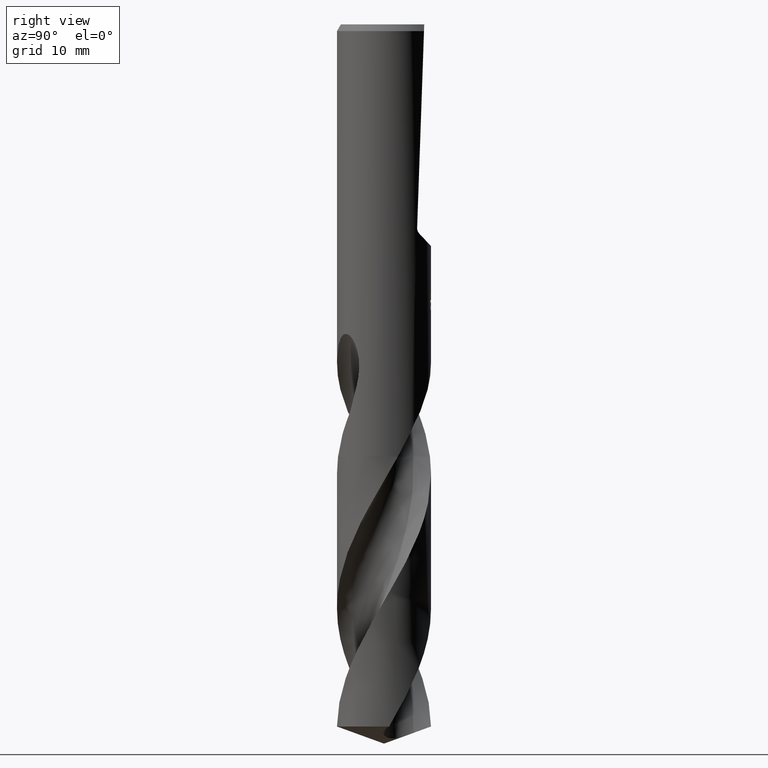
[diagram: clean part render]
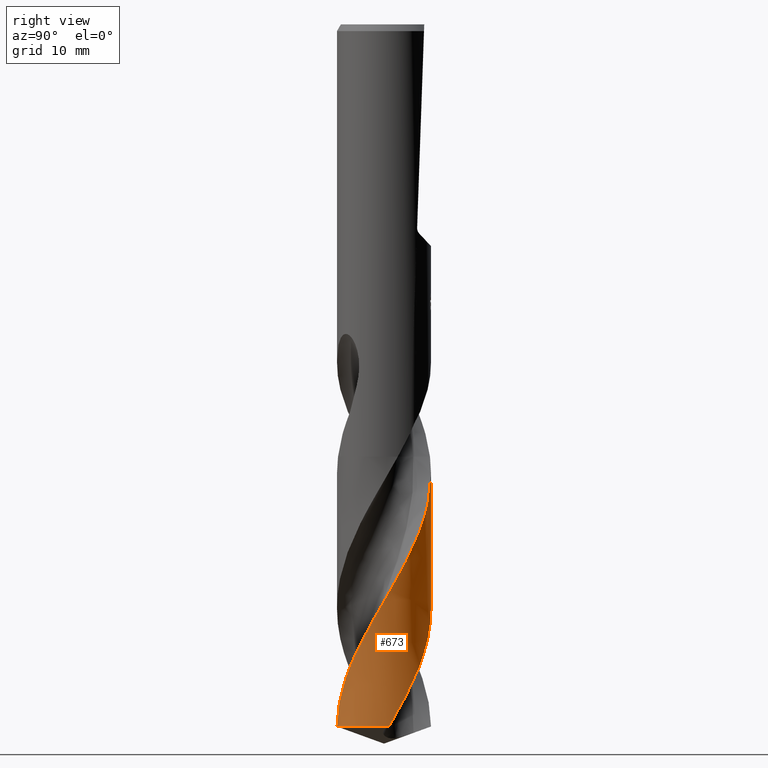
[diagram: same view with one face highlighted and labeled with its STEP entity id]
A machine part, right view. The second image highlights one B-rep face of the part: STEP entity #673.
In plain terms, the highlighted conical surface has half-angle 0 deg.
Its self-contained STEP definition (entity closure, byte-faithful):
#365=VERTEX_POINT('',#886);
#531=EDGE_CURVE('',#607,#365,#1062,.T.);
#605=EDGE_CURVE('',#619,#365,#1145,.T.);
#607=VERTEX_POINT('',#1147);
#609=VERTEX_POINT('',#1149);
#619=VERTEX_POINT('',#1160);
#673=ADVANCED_FACE('',(#1225),#1226,.T.);
#689=EDGE_CURVE('',#607,#609,#1244,.T.);
#729=EDGE_CURVE('',#619,#609,#1286,.T.);
#886=CARTESIAN_POINT('',(0.171648917684239,-6.99789515847857,-104.452208360137));
#1062=CIRCLE('',#4177,7.0);
#1145=B_SPLINE_CURVE_WITH_KNOTS('',3,(#5115,#5116,#5117,#5118,#5119,#5120,#5121,#5122,#5123,#5124,#5125,#5126,#5127,#5128,#5129,#5130,#5131,#5132,#5133,#5134,#5135,#5136,#5137,#5138,#5139,#5140,#5141,#5142,#5143,#5144,#5145,#5146,#5147,#5148,#5149,#5150,#5151,#5152,#5153,#5154,#5155,#5156,#5157,#5158,#5159,#5160,#5161,#5162,#5163,#5164,#5165,#5166,#5167,#5168),.UNSPECIFIED.,.F.,.F.,(4,2,2,2,2,2,2,2,2,2,2,2,2,2,2,2,2,2,2,2,2,2,2,2,2,2,4),(0.0,2.42463853208289,5.11825905022911,6.46930595296713,6.63663382298346,9.32046325382395,10.6685583011662,13.3613726300013,14.0328891449474,16.7220268329545,18.0666143228101,20.7620736525515,20.9296503367868,23.6145475187379,24.9618937636407,27.6537494544557,28.2381702892375,30.5049659548148,32.4952036520931,34.2363155569914,35.7604490176893,38.4274434662067,38.9275706412503,40.8041618091299,42.2120666753582,42.3439555753108,46.4382558351308),.UNSPECIFIED.);
#1147=CARTESIAN_POINT('',(6.95834412485811,0.762526747106399,-104.452208360137));
#1149=CARTESIAN_POINT('',(-1.19753568585419E-014,6.9999561201646,-86.8334854219192));
#1160=CARTESIAN_POINT('',(-2.90876926966706E-012,6.99990641540312,-66.8759260314849));
#1225=FACE_OUTER_BOUND('',#6323,.T.);
#1226=CONICAL_SURFACE('',#6324,6.99995,2.49052303929666E-006);
#1244=B_SPLINE_CURVE_WITH_KNOTS('',3,(#6583,#6584,#6585,#6586,#6587,#6588,#6589,#6590,#6591,#6592,#6593,#6594,#6595,#6596,#6597,#6598,#6599,#6600,#6601,#6602,#6603,#6604,#6605,#6606,#6607,#6608,#6609,#6610,#6611,#6612,#6613,#6614,#6615,#6616,#6617,#6618,#6619,#6620,#6621,#6622,#6623,#6624,#6625,#6626,#6627,#6628,#6629,#6630,#6631,#6632,#6633,#6634,#6635,#6636,#6637,#6638,#6639,#6640),.UNSPECIFIED.,.F.,.F.,(4,2,2,2,2,2,2,2,2,2,2,2,2,2,2,2,2,2,2,2,2,2,2,2,2,2,2,2,4),(0.0,3.39543451186766,5.60586435712491,6.94543109124275,8.28249579723188,10.0692441872911,10.9624324038601,11.853958782141,13.6404138657621,14.5334724137825,15.4248235927908,17.2110025318939,18.1039026545895,18.9950894885276,20.780961848582,23.4763709606844,24.7640418770248,26.10130580234,29.1952198764106,29.2863759270751,31.0537916685812,32.0137325630353,33.8105038613855,35.3858840478238,36.762907054197,38.6016613054026,40.5538676187283,43.4931155662234,46.4199670524006),.UNSPECIFIED.);
#1286=LINE('',#7273,#7274);
#4177=AXIS2_PLACEMENT_3D('',#7712,#7713,#7714);
#5115=CARTESIAN_POINT('',(-1.48231605309676,6.84115043153617,-64.3028157406));
#5116=CARTESIAN_POINT('',(-1.08543241818439,6.92714754141986,-65.0015974509227));
#5117=CARTESIAN_POINT('',(-0.682003755208056,6.97840455710284,-65.700664908244));
#5118=CARTESIAN_POINT('',(0.173781012570545,7.01225067306067,-67.1759475750082));
#5119=CARTESIAN_POINT('',(0.624926672226586,6.98652396856223,-67.9501317657106));
#5120=CARTESIAN_POINT('',(1.2940419208945,6.88297715681841,-69.1159808817254));
#5121=CARTESIAN_POINT('',(1.51573692310627,6.83757790469686,-69.505113896801));
#5122=CARTESIAN_POINT('',(1.76197796857612,6.77458596209132,-69.9427770648114));
#5123=CARTESIAN_POINT('',(1.78907024375654,6.76748184620537,-69.9910060956537));
#5124=CARTESIAN_POINT('',(2.24996377924964,6.6436657922574,-70.8128944952736));
#5125=CARTESIAN_POINT('',(2.67165487779869,6.48560065109283,-71.5855567979758));
#5126=CARTESIAN_POINT('',(3.27805754032637,6.18903665533498,-72.7478241649815));
#5127=CARTESIAN_POINT('',(3.47587110672552,6.08014387273307,-73.135994762318));
#5128=CARTESIAN_POINT('',(4.05197522475307,5.72569831990265,-74.3009636904454));
#5129=CARTESIAN_POINT('',(4.41223900687096,5.45292771607447,-75.0757725576103));
#5130=CARTESIAN_POINT('',(4.82647907246562,5.07116868457852,-76.0456177143773));
#5131=CARTESIAN_POINT('',(4.90730049759594,4.99300058620514,-76.239131077849));
#5132=CARTESIAN_POINT('',(5.30215135656877,4.59226431814843,-77.2080388815017));
#5133=CARTESIAN_POINT('',(5.58649076869326,4.24181181795913,-77.9820345746769));
#5134=CARTESIAN_POINT('',(5.95958154541472,3.67874967938536,-79.1449377634296));
#5135=CARTESIAN_POINT('',(6.07479259040593,3.48520888247137,-79.5322659701586));
#5136=CARTESIAN_POINT('',(6.39229690177596,2.88812735097526,-80.6971779192447));
#5137=CARTESIAN_POINT('',(6.56516861709821,2.47012254512069,-81.4726443882975));
#5138=CARTESIAN_POINT('',(6.70477911466411,2.011455211893,-82.2980597271048));
#5139=CARTESIAN_POINT('',(6.71278856143122,1.98456201138058,-82.3463686719297));
#5140=CARTESIAN_POINT('',(6.84637135283357,1.52597114453977,-83.1688064720322));
#5141=CARTESIAN_POINT('',(6.93023732537459,1.08317149850801,-83.9418958026259));
#5142=CARTESIAN_POINT('',(6.99153512673312,0.410697795647012,-85.1045476106341));
#5143=CARTESIAN_POINT('',(7.00113818912948,0.185170790760578,-85.4926334879896));
#5144=CARTESIAN_POINT('',(6.99723779937759,-0.491075698364233,-86.6574260453632));
#5145=CARTESIAN_POINT('',(6.95111911978041,-0.940539487979244,-87.432156280145));
#5146=CARTESIAN_POINT('',(6.842745625668,-1.47846298222499,-88.3768494685555));
#5147=CARTESIAN_POINT('',(6.82140609649966,-1.57398914046706,-88.545308084329));
#5148=CARTESIAN_POINT('',(6.70756639210208,-2.03767405293099,-89.3675288430942));
#5149=CARTESIAN_POINT('',(6.58721724489462,-2.39837013352996,-90.0206169922325));
#5150=CARTESIAN_POINT('',(6.30739064141976,-3.05408852586843,-91.2482663007094));
#5151=CARTESIAN_POINT('',(6.15485795535187,-3.35086777814885,-91.8211978553108));
#5152=CARTESIAN_POINT('',(5.83039641070186,-3.88472002709677,-92.8973663869935));
#5153=CARTESIAN_POINT('',(5.66355660039295,-4.12416993117457,-93.3991084554417));
#5154=CARTESIAN_POINT('',(5.32351121206953,-4.55247605841336,-94.340739751099));
#5155=CARTESIAN_POINT('',(5.1539941536259,-4.7435362526653,-94.7797163040395));
#5156=CARTESIAN_POINT('',(4.6602589049663,-5.24224323684162,-95.988491280008));
#5157=CARTESIAN_POINT('',(4.31636072510516,-5.52886371624123,-96.7561404935032));
#5158=CARTESIAN_POINT('',(3.87825237114848,-5.8280305512521,-97.6694820440116));
#5159=CARTESIAN_POINT('',(3.80823506019718,-5.87402163546336,-97.8136738463047));
#5160=CARTESIAN_POINT('',(3.47166867861132,-6.08654972837413,-98.4991447411816));
#5161=CARTESIAN_POINT('',(3.19491642830076,-6.23627326061032,-99.0400887649929));
#5162=CARTESIAN_POINT('',(2.69456939851324,-6.46488533956301,-99.9873985069313));
#5163=CARTESIAN_POINT('',(2.47525342892603,-6.55199282009987,-100.393111476526));
#5164=CARTESIAN_POINT('',(2.23100960097843,-6.63497990210307,-100.837174687493));
#5165=CARTESIAN_POINT('',(2.21005795033736,-6.64198820241712,-100.875207204823));
#5166=CARTESIAN_POINT('',(1.53759746463935,-6.86339118281307,-102.094155136431));
#5167=CARTESIAN_POINT('',(0.857809582310913,-6.98106162221675,-103.271362549127));
#5168=CARTESIAN_POINT('',(0.171648917684275,-6.99789515847855,-104.452208360137));
#6323=EDGE_LOOP('',(#7950,#7951,#7952,#7953));
#6324=AXIS2_PLACEMENT_3D('',#7954,#7955,#7956);
#6583=CARTESIAN_POINT('',(6.9583441248581,0.762526747106406,-104.452208360137));
#6584=CARTESIAN_POINT('',(6.8965724731465,1.32619396896988,-103.472687657686));
#6585=CARTESIAN_POINT('',(6.76642297032104,1.88114929313659,-102.504053485187));
#6586=CARTESIAN_POINT('',(6.44258976692898,2.76223014663446,-100.887932040987));
#6587=CARTESIAN_POINT('',(6.2875547526993,3.09897667781708,-100.248879145296));
#6588=CARTESIAN_POINT('',(5.99679329681348,3.61782489749465,-99.2253850013758));
#6589=CARTESIAN_POINT('',(5.87774308892753,3.80818493869163,-98.8398216296364));
#6590=CARTESIAN_POINT('',(5.62206528999757,4.17639838479019,-98.068049319052));
#6591=CARTESIAN_POINT('',(5.48569682259757,4.35395366914166,-97.6817975770806));
#6592=CARTESIAN_POINT('',(5.14795689624682,4.75264060095409,-96.7812685415974));
#6593=CARTESIAN_POINT('',(4.94026036960512,4.9682072302933,-96.2677359069456));
#6594=CARTESIAN_POINT('',(4.6087761251296,5.27079180562885,-95.4955492524721));
#6595=CARTESIAN_POINT('',(4.49517272634505,5.36799885078512,-95.2383236875194));
#6596=CARTESIAN_POINT('',(4.26231298029882,5.5546896111787,-94.7238305147));
#6597=CARTESIAN_POINT('',(4.14310595269587,5.64416260759012,-94.4664869099562));
#6598=CARTESIAN_POINT('',(3.77637034750601,5.90152339891628,-93.6943404187504));
#6599=CARTESIAN_POINT('',(3.52083273284047,6.05746655148066,-93.1808283939844));
#6600=CARTESIAN_POINT('',(3.12347968656498,6.26624572927748,-92.4086390493914));
#6601=CARTESIAN_POINT('',(2.98894644463472,6.33151520734197,-92.1514113955914));
#6602=CARTESIAN_POINT('',(2.7163772615965,6.45314474206828,-91.6369189229459));
#6603=CARTESIAN_POINT('',(2.57839455645556,6.5095061239335,-91.3795783662102));
#6604=CARTESIAN_POINT('',(2.15844216534316,6.66558093205415,-90.6074465466122));
#6605=CARTESIAN_POINT('',(1.87174892358338,6.75171101192336,-90.0939292649778));
#6606=CARTESIAN_POINT('',(1.43450233310021,6.85303236319009,-89.3217360209678));
#6607=CARTESIAN_POINT('',(1.28783790441801,6.88209612304556,-89.0645096918993));
#6608=CARTESIAN_POINT('',(0.993381029597937,6.93071887842151,-88.5500211673798));
#6609=CARTESIAN_POINT('',(0.845640875389063,6.95029261238305,-88.292681052884));
#6610=CARTESIAN_POINT('',(0.399897442376058,6.99491233376827,-87.5205525994668));
#6611=CARTESIAN_POINT('',(0.100756444527773,7.00562500140607,-87.0070394265178));
#6612=CARTESIAN_POINT('',(-0.649811811535705,6.98434428305668,-85.7152076877901));
#6613=CARTESIAN_POINT('',(-1.09887139126849,6.92789907072751,-84.9369480253133));
#6614=CARTESIAN_POINT('',(-1.74994053370337,6.781116550219,-83.7887370186075));
#6615=CARTESIAN_POINT('',(-1.95806724356011,6.72396827548699,-83.418081810485));
#6616=CARTESIAN_POINT('',(-2.37617816127097,6.58810892458186,-82.6612800265029));
#6617=CARTESIAN_POINT('',(-2.5855670429479,6.50876937472588,-82.275008310254));
#6618=CARTESIAN_POINT('',(-3.26514558073665,6.21334815375009,-80.9977904555766));
#6619=CARTESIAN_POINT('',(-3.71502255014007,5.95522514027253,-80.1136189131772));
#6620=CARTESIAN_POINT('',(-4.14435589934795,5.64124678368307,-79.1953742257753));
#6621=CARTESIAN_POINT('',(-4.15662657615294,5.63221156727182,-79.1690680628286));
#6622=CARTESIAN_POINT('',(-4.40673273877093,5.44678500182605,-78.6317032109648));
#6623=CARTESIAN_POINT('',(-4.63342768785084,5.25533313926962,-78.1222636233691));
#6624=CARTESIAN_POINT('',(-4.9638429787239,4.93814795566479,-77.3344421822228));
#6625=CARTESIAN_POINT('',(-5.07619943061941,4.82257078298396,-77.0573611957841));
#6626=CARTESIAN_POINT('',(-5.38699613679301,4.47997612854282,-76.2608415622692));
#6627=CARTESIAN_POINT('',(-5.57488957668972,4.24388462832105,-75.7405359297806));
#6628=CARTESIAN_POINT('',(-5.89802100740167,3.77918406474504,-74.7661811055478));
#6629=CARTESIAN_POINT('',(-6.03656160451137,3.55370294372993,-74.3120319537748));
#6630=CARTESIAN_POINT('',(-6.27168036786091,3.11743077689997,-73.459021917121));
#6631=CARTESIAN_POINT('',(-6.37111409026999,2.9087885154888,-73.0604570583488));
#6632=CARTESIAN_POINT('',(-6.57863475306438,2.41150733362076,-72.1316725559482));
#6633=CARTESIAN_POINT('',(-6.67846569801678,2.11946547007004,-71.6023774282013));
#6634=CARTESIAN_POINT('',(-6.84398691366168,1.50530761197574,-70.5080631383464));
#6635=CARTESIAN_POINT('',(-6.90684860796691,1.18369603545176,-69.9433357756233));
#6636=CARTESIAN_POINT('',(-7.0074005795601,0.370679985095477,-68.5314639713178));
#6637=CARTESIAN_POINT('',(-7.01612042449978,-0.123041312285353,-67.6890097733981));
#6638=CARTESIAN_POINT('',(-6.93000893260131,-1.10179947442418,-65.9967192717047));
#6639=CARTESIAN_POINT('',(-6.83580988479547,-1.58438690469697,-65.1490645000824));
#6640=CARTESIAN_POINT('',(-6.69216221132454,-2.05269703331493,-64.3046823919303));
#7273=CARTESIAN_POINT('',(-8.5807405540139E-016,6.99995,-84.3761041800683));
#7274=VECTOR('',#8008,1.0);
#7712=CARTESIAN_POINT('',(0.0,0.0,-104.452208360137));
#7713=DIRECTION('',(0.0,0.0,-1.0));
#7714=DIRECTION('',(0.0,1.0,0.0));
#7950=ORIENTED_EDGE('',*,*,#729,.F.);
#7951=ORIENTED_EDGE('',*,*,#605,.T.);
#7952=ORIENTED_EDGE('',*,*,#531,.F.);
#7953=ORIENTED_EDGE('',*,*,#689,.T.);
#7954=CARTESIAN_POINT('',(0.0,0.0,-84.3761041800683));
#7955=DIRECTION('',(0.0,-0.0,-1.0));
#7956=DIRECTION('',(0.0,1.0,0.0));
#8008=DIRECTION('',(-3.04991033826056E-022,2.49052303929409E-006,-0.999999999996899));